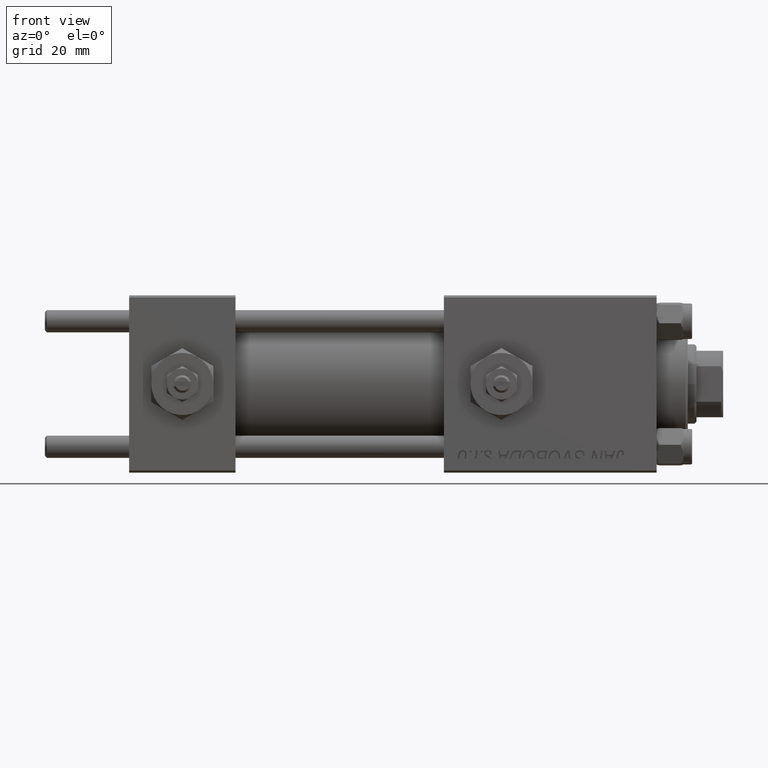
[diagram: clean part render]
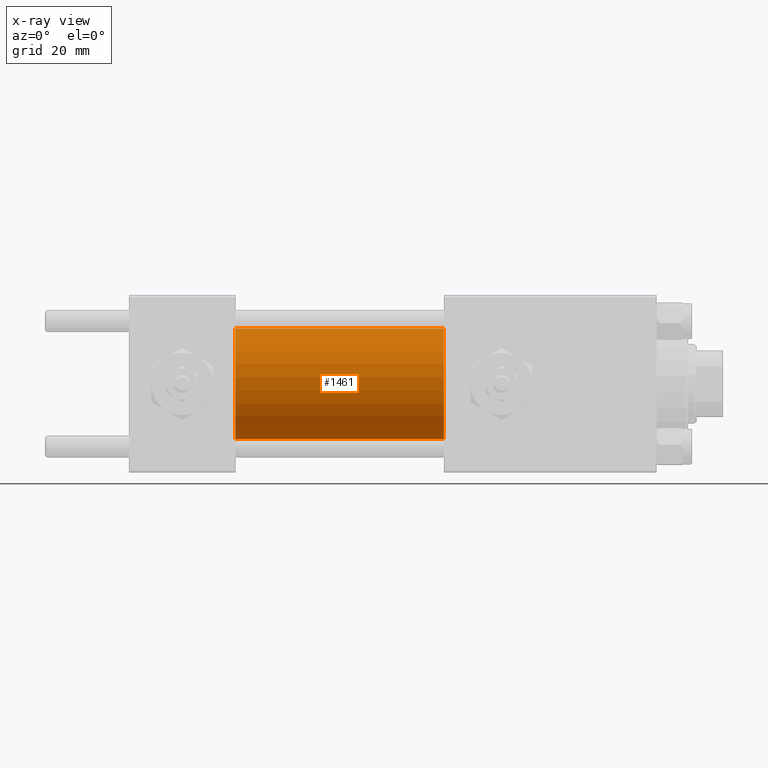
[diagram: x-ray — body ghosted, one internal face saturated and labeled with its STEP entity id]
A machine part, front view, then the same camera in x-ray: the body is ghosted and one INTERNAL B-rep face — a face not visible from any outside direction — is saturated and labeled: STEP entity #1461.
In plain terms, the highlighted cylindrical surface (partial cylindrical patch) has radius 12.5 mm, axis along (-1, -0, -0).
Its self-contained STEP definition (entity closure, byte-faithful):
#595 = CARTESIAN_POINT ( 'NONE',  ( 24.00000000000000000, 1.530808498934191127E-15, -12.49999999999999645 ) ) ;
#1461 = ADVANCED_FACE ( 'NONE', ( #45465 ), #30242, .F. ) ;
#1855 = DIRECTION ( 'NONE',  ( 1.000000000000000000, 0.000000000000000000, 0.000000000000000000 ) ) ;
#2075 = VECTOR ( 'NONE', #30752, 1000.000000000000000 ) ;
#2529 = CARTESIAN_POINT ( 'NONE',  ( 71.00000000000001421, 0.000000000000000000, 12.49999999999999645 ) ) ;
#6032 = EDGE_CURVE ( 'NONE', #16379, #7969, #6728, .T. ) ;
#6727 = DIRECTION ( 'NONE',  ( 0.000000000000000000, 0.000000000000000000, -1.000000000000000000 ) ) ;
#6728 = CIRCLE ( 'NONE', #48628, 12.49999999999999645 ) ;
#7969 = VERTEX_POINT ( 'NONE', #49865 ) ;
#12264 = VERTEX_POINT ( 'NONE', #12582 ) ;
#12582 = CARTESIAN_POINT ( 'NONE',  ( 24.00000000000000000, 0.000000000000000000, 12.49999999999999645 ) ) ;
#13568 = EDGE_CURVE ( 'NONE', #16379, #12264, #34014, .T. ) ;
#14577 = DIRECTION ( 'NONE',  ( -1.000000000000000000, -0.000000000000000000, -0.000000000000000000 ) ) ;
#16379 = VERTEX_POINT ( 'NONE', #46746 ) ;
#19851 = DIRECTION ( 'NONE',  ( 1.000000000000000000, 0.000000000000000000, 0.000000000000000000 ) ) ;
#20222 = CIRCLE ( 'NONE', #49532, 12.49999999999999645 ) ;
#21431 = EDGE_CURVE ( 'NONE', #7969, #25787, #38882, .T. ) ;
#22382 = DIRECTION ( 'NONE',  ( -1.000000000000000000, -0.000000000000000000, -0.000000000000000000 ) ) ;
#23849 = ORIENTED_EDGE ( 'NONE', *, *, #6032, .T. ) ;
#25787 = VERTEX_POINT ( 'NONE', #595 ) ;
#25983 = CARTESIAN_POINT ( 'NONE',  ( 24.00000000000000000, 0.000000000000000000, 0.000000000000000000 ) ) ;
#26294 = CARTESIAN_POINT ( 'NONE',  ( 71.00000000000001421, 1.530808498934191127E-15, -12.49999999999999645 ) ) ;
#28955 = EDGE_CURVE ( 'NONE', #12264, #25787, #20222, .T. ) ;
#30242 = CYLINDRICAL_SURFACE ( 'NONE', #46767, 12.49999999999999645 ) ;
#30506 = CARTESIAN_POINT ( 'NONE',  ( 71.00000000000001421, 0.000000000000000000, 0.000000000000000000 ) ) ;
#30752 = DIRECTION ( 'NONE',  ( -1.000000000000000000, -0.000000000000000000, -0.000000000000000000 ) ) ;
#33749 = ORIENTED_EDGE ( 'NONE', *, *, #28955, .F. ) ;
#34014 = LINE ( 'NONE', #2529, #45358 ) ;
#34525 = EDGE_LOOP ( 'NONE', ( #23849, #48356, #33749, #42039 ) ) ;
#38882 = LINE ( 'NONE', #26294, #2075 ) ;
#42039 = ORIENTED_EDGE ( 'NONE', *, *, #13568, .F. ) ;
#42043 = DIRECTION ( 'NONE',  ( 0.000000000000000000, 0.000000000000000000, 1.000000000000000000 ) ) ;
#42758 = DIRECTION ( 'NONE',  ( 0.000000000000000000, 0.000000000000000000, -1.000000000000000000 ) ) ;
#45358 = VECTOR ( 'NONE', #14577, 1000.000000000000000 ) ;
#45465 = FACE_OUTER_BOUND ( 'NONE', #34525, .T. ) ;
#46746 = CARTESIAN_POINT ( 'NONE',  ( 71.00000000000001421, 0.000000000000000000, 12.49999999999999645 ) ) ;
#46767 = AXIS2_PLACEMENT_3D ( 'NONE', #30506, #22382, #42043 ) ;
#48356 = ORIENTED_EDGE ( 'NONE', *, *, #21431, .T. ) ;
#48628 = AXIS2_PLACEMENT_3D ( 'NONE', #50824, #19851, #6727 ) ;
#49532 = AXIS2_PLACEMENT_3D ( 'NONE', #25983, #1855, #42758 ) ;
#49865 = CARTESIAN_POINT ( 'NONE',  ( 71.00000000000001421, 1.530808498934191127E-15, -12.49999999999999645 ) ) ;
#50824 = CARTESIAN_POINT ( 'NONE',  ( 71.00000000000001421, 0.000000000000000000, 0.000000000000000000 ) ) ;